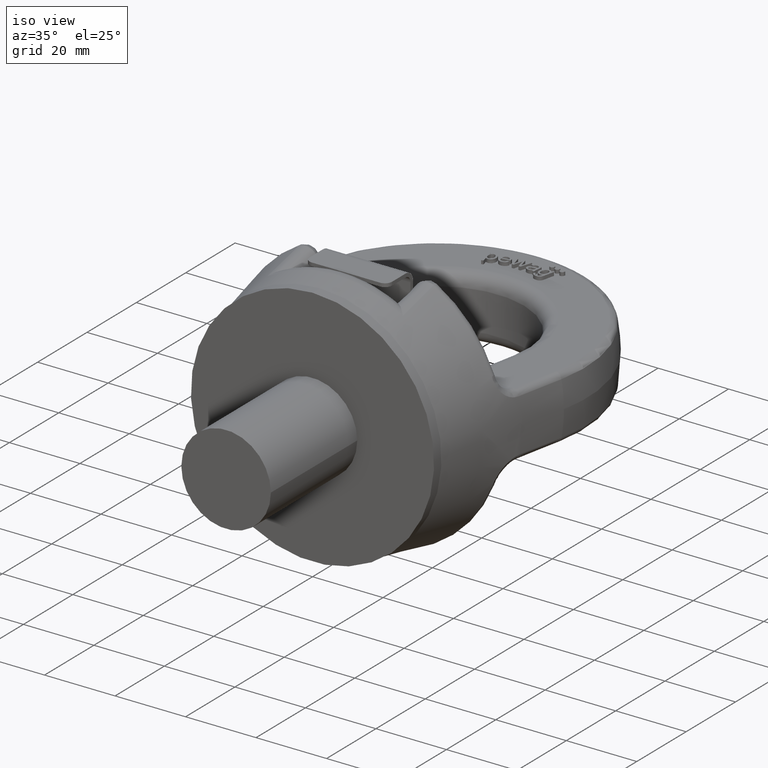
[diagram: clean part render]
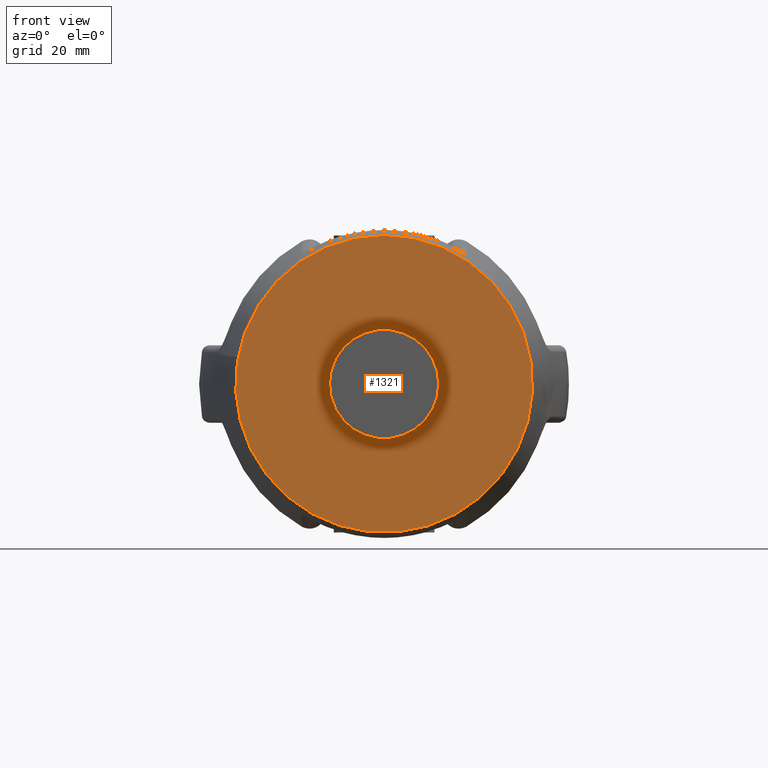
[diagram: tour spotlight — one face highlighted and labeled with its STEP entity id]
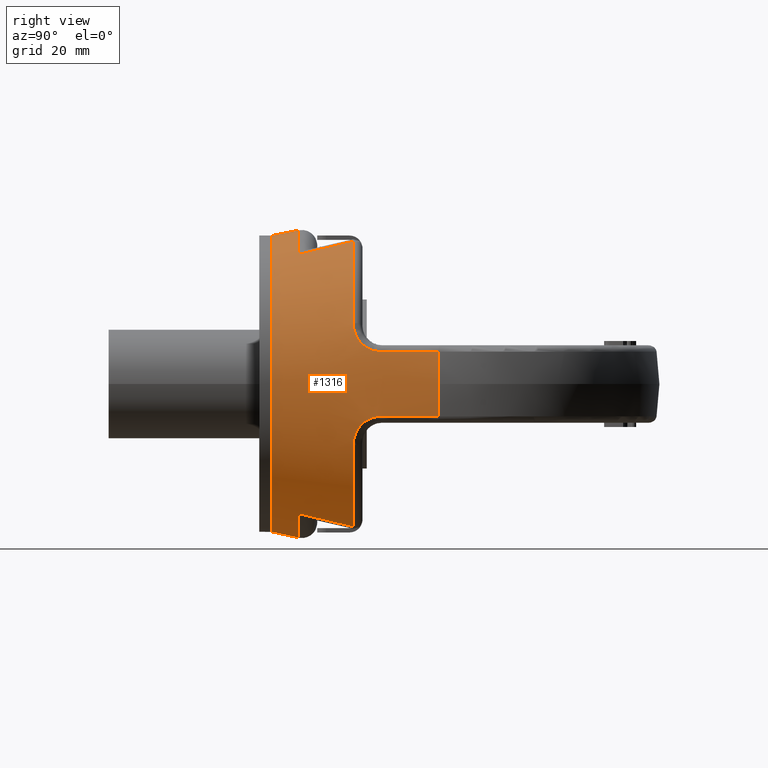
[diagram: tour spotlight — one face highlighted and labeled with its STEP entity id]
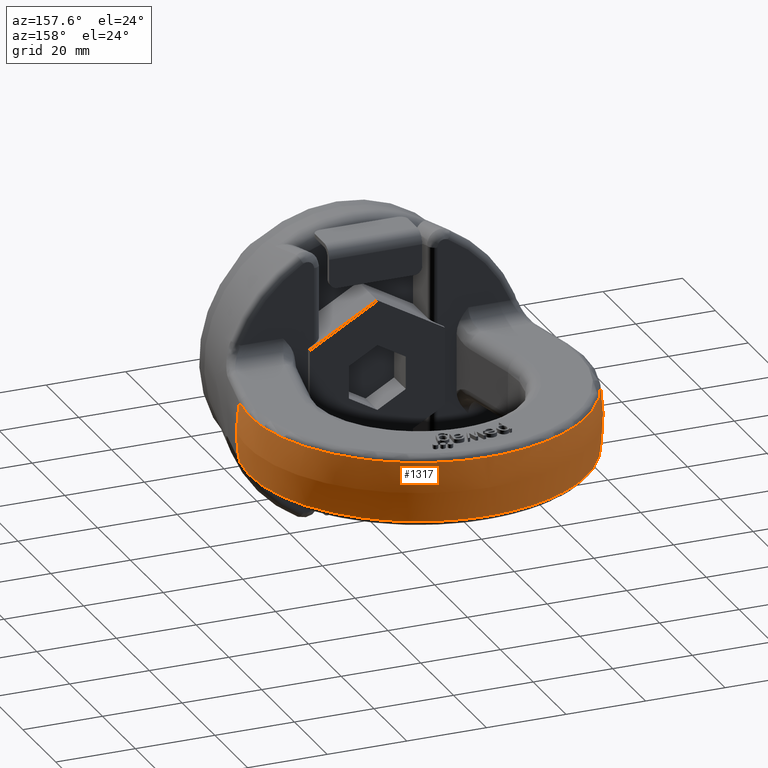
[diagram: tour spotlight — one face highlighted and labeled with its STEP entity id]
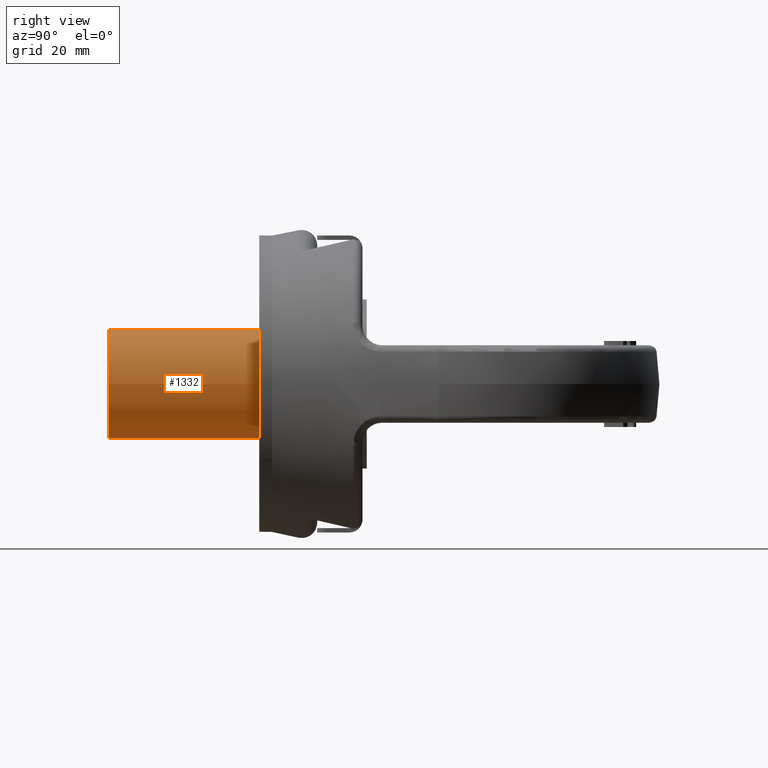
[diagram: tour spotlight — one face highlighted and labeled with its STEP entity id]
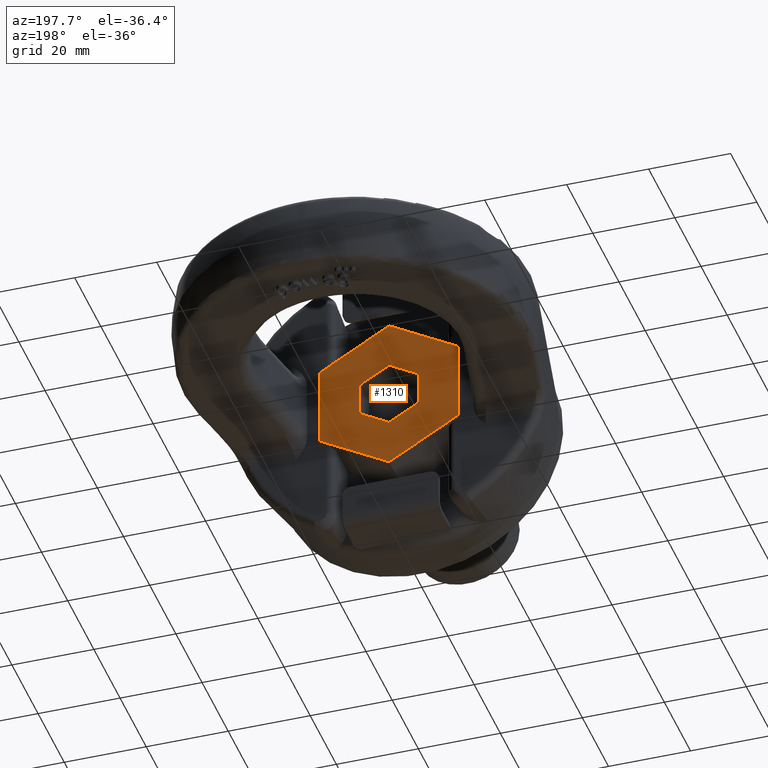
[diagram: tour spotlight — one face highlighted and labeled with its STEP entity id]
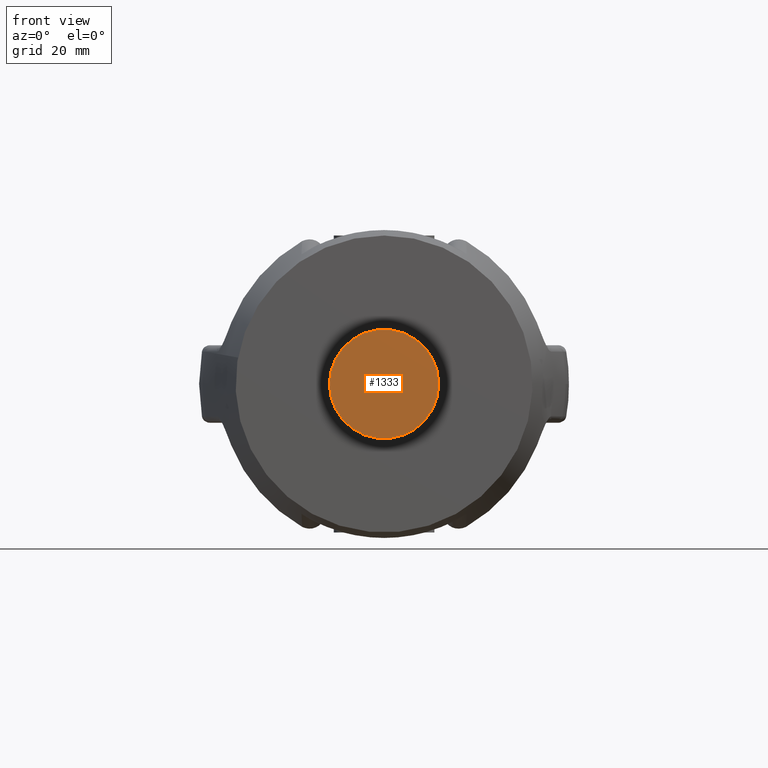
[diagram: tour spotlight — one face highlighted and labeled with its STEP entity id]
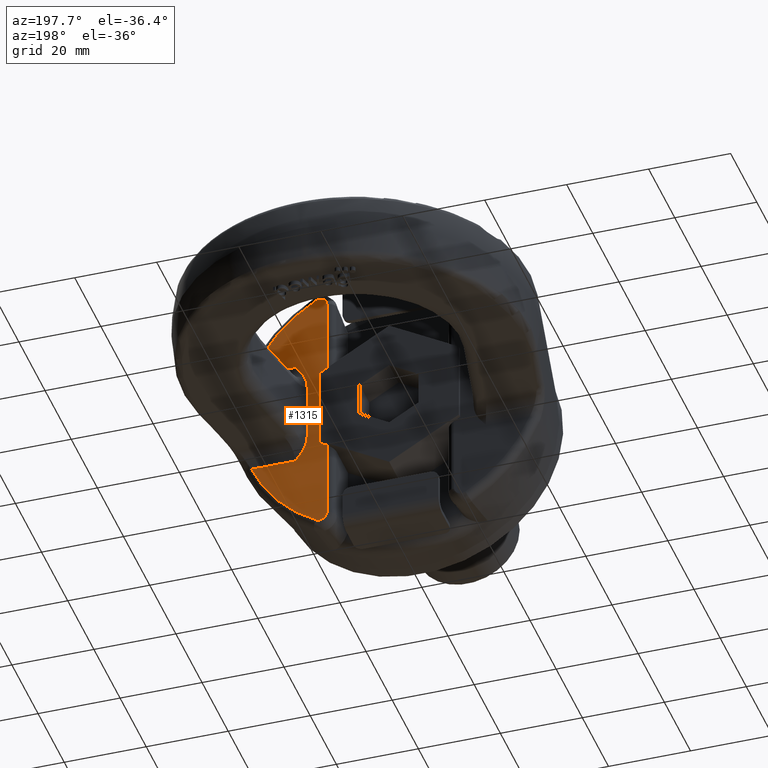
[diagram: tour spotlight — one face highlighted and labeled with its STEP entity id]
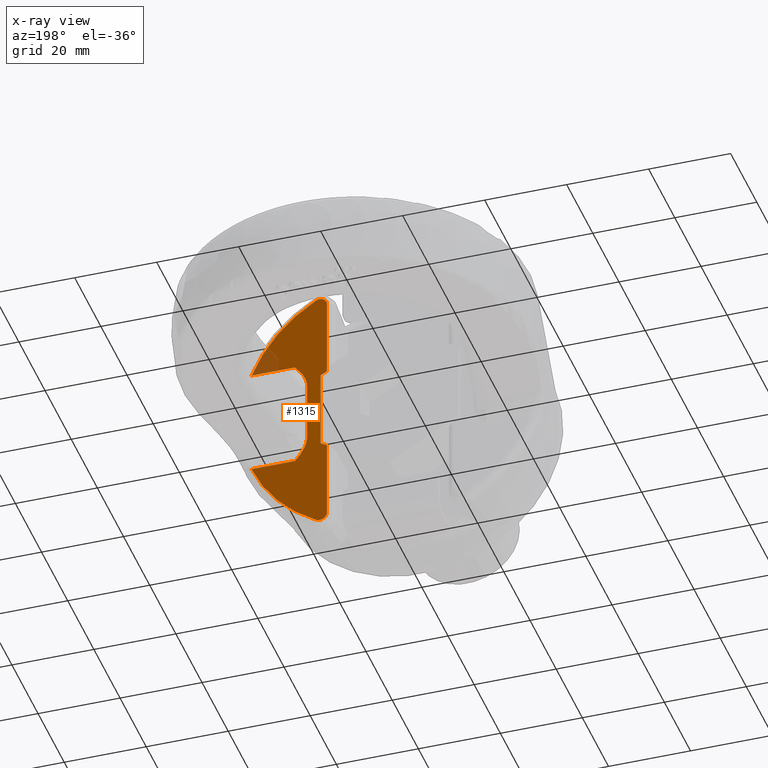
[diagram: x-ray of the same camera — body ghosted, this tour face saturated]
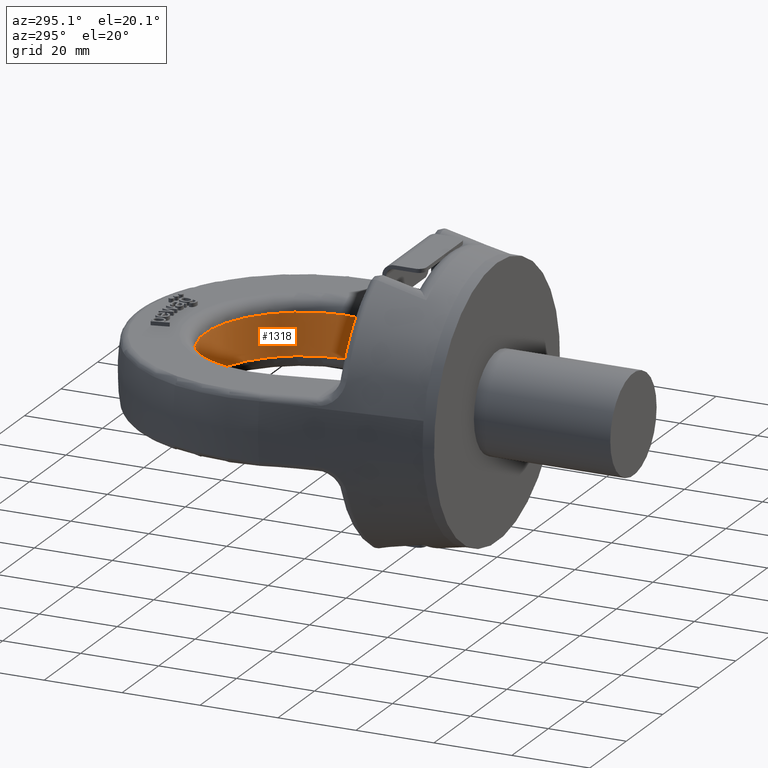
[diagram: tour spotlight — one face highlighted and labeled with its STEP entity id]
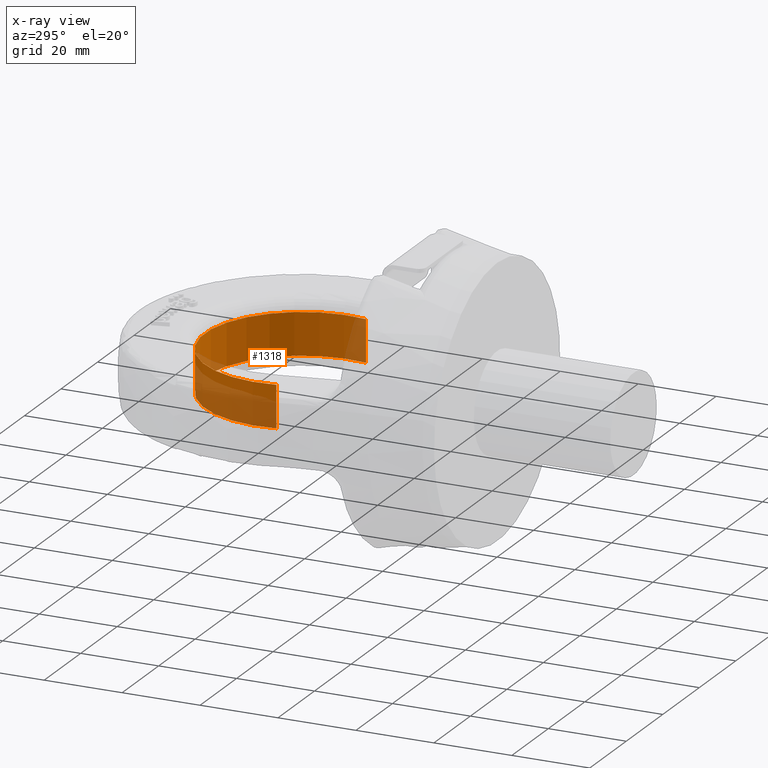
[diagram: x-ray of the same camera — body ghosted, this tour face saturated]
A machine part: a face-by-face anatomy tour. The part has 239 B-rep faces; the first image is the clean iso view, then the 8 largest visible faces are spotlighted one at a time (largest first), each with its STEP entity span.

Face 1 — front view, entity #1321. In plain terms, the highlighted planar face has unit normal (0, 1, 0).
Definition (entity closure, byte-faithful):
#1321=ADVANCED_FACE('',(#1769,#1770),#1557,.F.);
#1557=PLANE('',#5158);
#1689=CIRCLE('',#5156,34.5000000000001);
#1690=CIRCLE('',#5157,12.7);
#1769=FACE_BOUND('',#1834,.T.);
#1770=FACE_BOUND('',#1835,.T.);
#1834=EDGE_LOOP('',(#2851));
#1835=EDGE_LOOP('',(#2852));
#2851=ORIENTED_EDGE('',*,*,#4407,.F.);
#2852=ORIENTED_EDGE('',*,*,#4408,.T.);
#4011=VERTEX_POINT('',#6899);
#4012=VERTEX_POINT('',#6901);
#4407=EDGE_CURVE('',#4011,#4011,#1689,.T.);
#4408=EDGE_CURVE('',#4012,#4012,#1690,.T.);
#5156=AXIS2_PLACEMENT_3D('',#6898,#5531,#5532);
#5157=AXIS2_PLACEMENT_3D('',#6900,#5533,#5534);
#5158=AXIS2_PLACEMENT_3D('',#6902,#5535,#5536);
#5531=DIRECTION('',(0.,1.,0.));
#5532=DIRECTION('',(0.,0.,1.));
#5533=DIRECTION('',(0.,1.,0.));
#5534=DIRECTION('',(1.,0.,6.12323399573677E-17));
#5535=DIRECTION('',(0.,1.,0.));
#5536=DIRECTION('',(0.,0.,1.));
#6898=CARTESIAN_POINT('',(-1.27403500852703E-13,0.,1.35029952529594E-14));
#6899=CARTESIAN_POINT('',(-1.27403500852703E-13,0.,34.5000000000001));
#6900=CARTESIAN_POINT('',(0.,0.,0.));
#6901=CARTESIAN_POINT('',(12.7,0.,7.77650717458569E-16));
#6902=CARTESIAN_POINT('',(0.,0.,0.));

Face 2 — right view, entity #1316. In plain terms, the highlighted conical surface has half-angle 11.241 deg.
Definition (entity closure, byte-faithful):
#1090=CONICAL_SURFACE('',#5143,33.9037648954629,11.2407771573268);
#1316=ADVANCED_FACE('',(#1767,#1768),#1090,.T.);
#1676=CIRCLE('',#5134,42.1751168609517);
#1677=CIRCLE('',#5135,38.2461693295443);
#1678=CIRCLE('',#5136,35.7318700614479);
#1679=CIRCLE('',#5137,38.2461693295443);
#1680=CIRCLE('',#5138,42.1751168609517);
#1681=CIRCLE('',#5139,38.2461693295443);
#1682=CIRCLE('',#5140,35.7318700614479);
#1683=CIRCLE('',#5141,38.2461693295443);
#1684=CIRCLE('',#5142,34.5000000000001);
#1767=FACE_BOUND('',#1828,.T.);
#1768=FACE_BOUND('',#1829,.T.);
#1828=EDGE_LOOP('',(#2810,#2811,#2812,#2813,#2814,#2815,#2816,#2817,#2818,
#2819,#2820,#2821,#2822,#2823,#2824,#2825,#2826,#2827,#2828,#2829));
#1829=EDGE_LOOP('',(#2830));
#2810=ORIENTED_EDGE('',*,*,#4372,.T.);
#2811=ORIENTED_EDGE('',*,*,#4373,.T.);
#2812=ORIENTED_EDGE('',*,*,#4374,.T.);
#2813=ORIENTED_EDGE('',*,*,#4375,.T.);
#2814=ORIENTED_EDGE('',*,*,#4376,.T.);
#2815=ORIENTED_EDGE('',*,*,#4377,.T.);
#2816=ORIENTED_EDGE('',*,*,#4378,.T.);
#2817=ORIENTED_EDGE('',*,*,#4379,.T.);
#2818=ORIENTED_EDGE('',*,*,#4380,.T.);
#2819=ORIENTED_EDGE('',*,*,#4381,.T.);
#2820=ORIENTED_EDGE('',*,*,#4382,.T.);
#2821=ORIENTED_EDGE('',*,*,#4383,.T.);
#2822=ORIENTED_EDGE('',*,*,#4384,.T.);
#2823=ORIENTED_EDGE('',*,*,#4385,.T.);
#2824=ORIENTED_EDGE('',*,*,#4386,.T.);
#2825=ORIENTED_EDGE('',*,*,#4387,.T.);
#2826=ORIENTED_EDGE('',*,*,#4388,.T.);
#2827=ORIENTED_EDGE('',*,*,#4389,.T.);
#2828=ORIENTED_EDGE('',*,*,#4390,.T.);
#2829=ORIENTED_EDGE('',*,*,#4391,.T.);
#2830=ORIENTED_EDGE('',*,*,#4392,.F.);
#3982=VERTEX_POINT('',#6762);
#3983=VERTEX_POINT('',#6763);
#3984=VERTEX_POINT('',#6771);
#3985=VERTEX_POINT('',#6778);
#3986=VERTEX_POINT('',#6780);
#3987=VERTEX_POINT('',#6788);
#3988=VERTEX_POINT('',#6790);
#3989=VERTEX_POINT('',#6798);
#3990=VERTEX_POINT('',#6800);
#3991=VERTEX_POINT('',#6807);
#3992=VERTEX_POINT('',#6815);
#3993=VERTEX_POINT('',#6817);
#3994=VERTEX_POINT('',#6825);
#3995=VERTEX_POINT('',#6832);
#3996=VERTEX_POINT('',#6834);
#3997=VERTEX_POINT('',#6842);
#3998=VERTEX_POINT('',#6844);
#3999=VERTEX_POINT('',#6852);
#4000=VERTEX_POINT('',#6854);
#4001=VERTEX_POINT('',#6861);
#4002=VERTEX_POINT('',#6870);
#4372=EDGE_CURVE('',#3982,#3983,#1676,.T.);
#4373=EDGE_CURVE('',#3983,#3984,#4887,.T.);
#4374=EDGE_CURVE('',#3984,#3985,#4888,.T.);
#4375=EDGE_CURVE('',#3985,#3986,#1677,.T.);
#4376=EDGE_CURVE('',#3986,#3987,#4889,.T.);
#4377=EDGE_CURVE('',#3987,#3988,#1678,.T.);
#4378=EDGE_CURVE('',#3988,#3989,#4890,.T.);
#4379=EDGE_CURVE('',#3989,#3990,#1679,.T.);
#4380=EDGE_CURVE('',#3990,#3991,#4891,.T.);
#4381=EDGE_CURVE('',#3991,#3992,#4892,.T.);
#4382=EDGE_CURVE('',#3992,#3993,#1680,.T.);
#4383=EDGE_CURVE('',#3993,#3994,#4893,.T.);
#4384=EDGE_CURVE('',#3994,#3995,#4894,.T.);
#4385=EDGE_CURVE('',#3995,#3996,#1681,.T.);
#4386=EDGE_CURVE('',#3996,#3997,#4895,.T.);
#4387=EDGE_CURVE('',#3997,#3998,#1682,.T.);
#4388=EDGE_CURVE('',#3998,#3999,#4896,.T.);
#4389=EDGE_CURVE('',#3999,#4000,#1683,.T.);
#4390=EDGE_CURVE('',#4000,#4001,#4897,.T.);
#4391=EDGE_CURVE('',#4001,#3982,#4898,.T.);
#4392=EDGE_CURVE('',#4002,#4002,#1684,.T.);
#4887=B_SPLINE_CURVE_WITH_KNOTS('',3,(#6764,#6765,#6766,#6767,#6768,#6769,
#6770),.UNSPECIFIED.,.F.,.F.,(4,3,4),(0.,0.26196598705695,1.),
 .UNSPECIFIED.);
#4888=B_SPLINE_CURVE_WITH_KNOTS('',3,(#6772,#6773,#6774,#6775,#6776,#6777),
 .UNSPECIFIED.,.F.,.F.,(4,2,4),(0.,0.5,1.),.UNSPECIFIED.);
#4889=B_SPLINE_CURVE_WITH_KNOTS('',3,(#6781,#6782,#6783,#6784,#6785,#6786,
#6787),.UNSPECIFIED.,.F.,.F.,(4,3,4),(0.,0.260650964983414,1.),
 .UNSPECIFIED.);
#4890=B_SPLINE_CURVE_WITH_KNOTS('',3,(#6791,#6792,#6793,#6794,#6795,#6796,
#6797),.UNSPECIFIED.,.F.,.F.,(4,3,4),(0.,0.739349035016581,1.),
 .UNSPECIFIED.);
#4891=B_SPLINE_CURVE_WITH_KNOTS('',3,(#6801,#6802,#6803,#6804,#6805,#6806),
 .UNSPECIFIED.,.F.,.F.,(4,2,4),(0.,0.5,1.),.UNSPECIFIED.);
#4892=B_SPLINE_CURVE_WITH_KNOTS('',3,(#6808,#6809,#6810,#6811,#6812,#6813,
#6814),.UNSPECIFIED.,.F.,.F.,(4,3,4),(0.,0.261965987367572,1.),
 .UNSPECIFIED.);
#4893=B_SPLINE_CURVE_WITH_KNOTS('',3,(#6818,#6819,#6820,#6821,#6822,#6823,
#6824),.UNSPECIFIED.,.F.,.F.,(4,3,4),(0.,0.26196598705695,1.),
 .UNSPECIFIED.);
#4894=B_SPLINE_CURVE_WITH_KNOTS('',3,(#6826,#6827,#6828,#6829,#6830,#6831),
 .UNSPECIFIED.,.F.,.F.,(4,2,4),(0.,0.5,1.),.UNSPECIFIED.);
#4895=B_SPLINE_CURVE_WITH_KNOTS('',3,(#6835,#6836,#6837,#6838,#6839,#6840,
#6841),.UNSPECIFIED.,.F.,.F.,(4,3,4),(0.,0.260650964983414,1.),
 .UNSPECIFIED.);
#4896=B_SPLINE_CURVE_WITH_KNOTS('',3,(#6845,#6846,#6847,#6848,#6849,#6850,
#6851),.UNSPECIFIED.,.F.,.F.,(4,3,4),(0.,0.739349035016581,1.),
 .UNSPECIFIED.);
#4897=B_SPLINE_CURVE_WITH_KNOTS('',3,(#6855,#6856,#6857,#6858,#6859,#6860),
 .UNSPECIFIED.,.F.,.F.,(4,2,4),(0.,0.5,1.),.UNSPECIFIED.);
#4898=B_SPLINE_CURVE_WITH_KNOTS('',3,(#6862,#6863,#6864,#6865,#6866,#6867,
#6868),.UNSPECIFIED.,.F.,.F.,(4,3,4),(0.,0.261965987367572,1.),
 .UNSPECIFIED.);
#5134=AXIS2_PLACEMENT_3D('',#6761,#5481,#5482);
#5135=AXIS2_PLACEMENT_3D('',#6779,#5483,#5484);
#5136=AXIS2_PLACEMENT_3D('',#6789,#5485,#5486);
#5137=AXIS2_PLACEMENT_3D('',#6799,#5487,#5488);
#5138=AXIS2_PLACEMENT_3D('',#6816,#5489,#5490);
#5139=AXIS2_PLACEMENT_3D('',#6833,#5491,#5492);
#5140=AXIS2_PLACEMENT_3D('',#6843,#5493,#5494);
#5141=AXIS2_PLACEMENT_3D('',#6853,#5495,#5496);
#5142=AXIS2_PLACEMENT_3D('',#6869,#5497,#5498);
#5143=AXIS2_PLACEMENT_3D('',#6871,#5499,#5500);
#5481=DIRECTION('',(-1.36993011669573E-15,-1.,0.));
#5482=DIRECTION('',(1.,-1.31620622212557E-15,0.));
#5483=DIRECTION('',(5.23959618485329E-16,-1.,1.2275906117985E-30));
#5484=DIRECTION('',(-1.,-5.44281481691849E-16,-2.34291072916505E-15));
#5485=DIRECTION('',(-1.26622151531154E-16,-1.,-2.96664397372303E-31));
#5486=DIRECTION('',(-1.,1.45645061928772E-16,-2.34291072916505E-15));
#5487=DIRECTION('',(-5.23959618485329E-16,-1.,-1.2275906117985E-30));
#5488=DIRECTION('',(-1.,5.44281481691849E-16,-2.34291072916505E-15));
#5489=DIRECTION('',(-1.36993011669573E-15,-1.,0.));
#5490=DIRECTION('',(1.,-1.31620622212557E-15,0.));
#5491=DIRECTION('',(-5.23959618485329E-16,-1.,0.));
#5492=DIRECTION('',(1.,-5.44281481691849E-16,0.));
#5493=DIRECTION('',(1.26622151531154E-16,-1.,0.));
#5494=DIRECTION('',(1.,1.45645061928772E-16,0.));
#5495=DIRECTION('',(5.23959618485329E-16,-1.,0.));
#5496=DIRECTION('',(1.,5.44281481691849E-16,0.));
#5497=DIRECTION('',(0.,-1.,0.));
#5498=DIRECTION('',(0.,0.,1.));
#5499=DIRECTION('',(1.36993011669573E-15,1.,0.));
#5500=DIRECTION('',(-1.,7.75466031642052E-16,0.));
#6761=CARTESIAN_POINT('',(-7.03898794955252E-14,41.6179049298475,0.));
#6762=CARTESIAN_POINT('',(-41.5002629334913,41.6179049298476,7.51456310679614));
#6763=CARTESIAN_POINT('',(-41.5002629334912,41.6179049298475,-7.51456310679622));
#6764=CARTESIAN_POINT('',(-41.5002629334912,41.6179049298475,-7.51456310679622));
#6765=CARTESIAN_POINT('',(-41.262371793964,40.4417227580087,-7.51638278088225));
#6766=CARTESIAN_POINT('',(-41.024407429153,39.2655554421835,-7.51823400134156));
#6767=CARTESIAN_POINT('',(-40.7863656152853,38.089403857365,-7.5201184668886));
#6768=CARTESIAN_POINT('',(-40.1157329366906,34.7758444664987,-7.525427551696));
#6769=CARTESIAN_POINT('',(-39.4444872519472,31.4624094684591,-7.53099986567119));
#6770=CARTESIAN_POINT('',(-38.7725191268712,28.1491216017145,-7.53687895949735));
#6771=CARTESIAN_POINT('',(-38.7725191268712,28.1491216017145,-7.53687895949735));
#6772=CARTESIAN_POINT('',(-38.7725191268712,28.1491216017145,-7.53687895949735));
#6773=CARTESIAN_POINT('',(-38.4155167898867,26.3888424048459,-7.54000239669171));
#6774=CARTESIAN_POINT('',(-37.9375858818164,24.73080778331,-8.33524847165429));
#6775=CARTESIAN_POINT('',(-36.826425115145,22.451579933414,-10.8437830853427));
#6776=CARTESIAN_POINT('',(-36.1939914476563,21.8491216017145,-12.4889596849298));
#6777=CARTESIAN_POINT('',(-35.5310116414863,21.8491216017145,-14.1533275280666));
#6778=CARTESIAN_POINT('',(-35.5310116414863,21.8491216017145,-14.1533275280666));
#6779=CARTESIAN_POINT('',(9.7471731147167E-14,21.8491216017146,2.28367564694989E-28));
#6780=CARTESIAN_POINT('',(-19.0596099317146,21.8491216017145,-33.1587203859717));
#6781=CARTESIAN_POINT('',(-19.0596099317146,21.8491216017145,-33.1587203859717));
#6782=CARTESIAN_POINT('',(-19.0706922042846,20.7490114468574,-32.9001633340901));
#6783=CARTESIAN_POINT('',(-19.0819815683652,19.6491225862349,-32.6406714209463));
#6784=CARTESIAN_POINT('',(-19.0934898627677,18.5494756563027,-32.3801697754362));
#6785=CARTESIAN_POINT('',(-19.1261335905987,15.4302840684424,-31.6412466545859));
#6786=CARTESIAN_POINT('',(-19.1605342843369,12.3130067293474,-30.8942442142404));
#6787=CARTESIAN_POINT('',(-19.1970030429458,9.1982432034291,-30.1370471721654));
#6788=CARTESIAN_POINT('',(-19.1970030429458,9.1982432034291,-30.1370471721654));
#6789=CARTESIAN_POINT('',(1.14802550467634E-13,9.1982432034291,2.68972127226131E-28));
#6790=CARTESIAN_POINT('',(19.1970030429459,9.1982432034291,-30.1370471721655));
#6791=CARTESIAN_POINT('',(19.1970030429459,9.1982432034291,-30.1370471721655));
#6792=CARTESIAN_POINT('',(19.160534284337,12.3130067293474,-30.8942442142404));
#6793=CARTESIAN_POINT('',(19.1261335905989,15.4302840684424,-31.6412466545859));
#6794=CARTESIAN_POINT('',(19.0934898627678,18.5494756563026,-32.3801697754362));
#6795=CARTESIAN_POINT('',(19.0819815683653,19.6491225862349,-32.6406714209464));
#6796=CARTESIAN_POINT('',(19.0706922042847,20.7490114468573,-32.9001633340901));
#6797=CARTESIAN_POINT('',(19.0596099317147,21.8491216017145,-33.1587203859717));
#6798=CARTESIAN_POINT('',(19.0596099317147,21.8491216017145,-33.1587203859717));
#6799=CARTESIAN_POINT('',(9.7471731147167E-14,21.8491216017146,2.28367564694989E-28));
#6800=CARTESIAN_POINT('',(35.5310116414866,21.8491216017145,-14.1533275280664));
#6801=CARTESIAN_POINT('',(35.5310116414866,21.8491216017145,-14.1533275280664));
#6802=CARTESIAN_POINT('',(36.1935776588447,21.8491216017145,-12.4899984749288));
#6803=CARTESIAN_POINT('',(36.8321705243426,22.4621816007076,-10.8303715744333));
#6804=CARTESIAN_POINT('',(37.9348125300438,24.7263056337703,-8.3419515136468));
#6805=CARTESIAN_POINT('',(38.4157924795365,26.3902017538044,-7.53999998466445));
#6806=CARTESIAN_POINT('',(38.7725191268714,28.1491216017145,-7.53687895949717));
#6807=CARTESIAN_POINT('',(38.7725191268714,28.1491216017145,-7.53687895949717));
#6808=CARTESIAN_POINT('',(38.7725191268714,28.1491216017145,-7.53687895949717));
#6809=CARTESIAN_POINT('',(39.0110349591953,29.3251768099523,-7.5347921686139));
#6810=CARTESIAN_POINT('',(39.2494595454838,30.5012505963745,-7.5327441116826));
#6811=CARTESIAN_POINT('',(39.4877981351242,31.6773418686576,-7.5307327101645));
#6812=CARTESIAN_POINT('',(40.1592669165261,34.9907313395309,-7.52506600999522));
#6813=CARTESIAN_POINT('',(40.8300547478608,38.304259365217,-7.51968965530919));
#6814=CARTESIAN_POINT('',(41.5002629334914,41.6179049298476,-7.51456310679605));
#6815=CARTESIAN_POINT('',(41.5002629334914,41.6179049298476,-7.51456310679605));
#6816=CARTESIAN_POINT('',(-7.03898794955252E-14,41.6179049298475,0.));
#6817=CARTESIAN_POINT('',(41.5002629334912,41.6179049298475,7.51456310679613));
#6818=CARTESIAN_POINT('',(41.5002629334912,41.6179049298475,7.51456310679613));
#6819=CARTESIAN_POINT('',(41.2623717939641,40.4417227580087,7.51638278088215));
#6820=CARTESIAN_POINT('',(41.024407429153,39.2655554421835,7.51823400134146));
#6821=CARTESIAN_POINT('',(40.7863656152853,38.089403857365,7.5201184668885));
#6822=CARTESIAN_POINT('',(40.1157329366907,34.7758444664987,7.52542755169591));
#6823=CARTESIAN_POINT('',(39.4444872519472,31.4624094684591,7.5309998656711));
#6824=CARTESIAN_POINT('',(38.7725191268712,28.1491216017145,7.53687895949726));
#6825=CARTESIAN_POINT('',(38.7725191268712,28.1491216017145,7.53687895949726));
#6826=CARTESIAN_POINT('',(38.7725191268712,28.1491216017145,7.53687895949726));
#6827=CARTESIAN_POINT('',(38.4155167898867,26.3888424048459,7.54000239669162));
#6828=CARTESIAN_POINT('',(37.9375858818164,24.73080778331,8.3352484716542));
#6829=CARTESIAN_POINT('',(36.8264251151451,22.451579933414,10.8437830853426));
#6830=CARTESIAN_POINT('',(36.1939914476564,21.8491216017145,12.4889596849297));
#6831=CARTESIAN_POINT('',(35.5310116414864,21.8491216017145,14.1533275280665));
#6832=CARTESIAN_POINT('',(35.5310116414864,21.8491216017145,14.1533275280665));
#6833=CARTESIAN_POINT('',(-9.7471731147167E-14,21.8491216017146,0.));
#6834=CARTESIAN_POINT('',(19.0596099317147,21.8491216017145,33.1587203859716));
#6835=CARTESIAN_POINT('',(19.0596099317147,21.8491216017145,33.1587203859716));
#6836=CARTESIAN_POINT('',(19.0706922042847,20.7490114468574,32.9001633340901));
#6837=CARTESIAN_POINT('',(19.0819815683653,19.6491225862349,32.6406714209463));
#6838=CARTESIAN_POINT('',(19.0934898627678,18.5494756563027,32.3801697754362));
#6839=CARTESIAN_POINT('',(19.1261335905988,15.4302840684424,31.6412466545859));
#6840=CARTESIAN_POINT('',(19.1605342843369,12.3130067293474,30.8942442142403));
#6841=CARTESIAN_POINT('',(19.1970030429459,9.1982432034291,30.1370471721654));
#6842=CARTESIAN_POINT('',(19.1970030429459,9.1982432034291,30.1370471721654));
#6843=CARTESIAN_POINT('',(-1.14802550467634E-13,9.1982432034291,0.));
#6844=CARTESIAN_POINT('',(-19.1970030429458,9.1982432034291,30.1370471721655));
#6845=CARTESIAN_POINT('',(-19.1970030429458,9.1982432034291,30.1370471721655));
#6846=CARTESIAN_POINT('',(-19.1605342843369,12.3130067293474,30.8942442142405));
#6847=CARTESIAN_POINT('',(-19.1261335905988,15.4302840684424,31.641246654586));
#6848=CARTESIAN_POINT('',(-19.0934898627678,18.5494756563026,32.3801697754363));
#6849=CARTESIAN_POINT('',(-19.0819815683653,19.6491225862349,32.6406714209464));
#6850=CARTESIAN_POINT('',(-19.0706922042847,20.7490114468573,32.9001633340902));
#6851=CARTESIAN_POINT('',(-19.0596099317147,21.8491216017145,33.1587203859717));
#6852=CARTESIAN_POINT('',(-19.0596099317147,21.8491216017145,33.1587203859717));
#6853=CARTESIAN_POINT('',(-9.7471731147167E-14,21.8491216017146,0.));
#6854=CARTESIAN_POINT('',(-35.5310116414866,21.8491216017145,14.1533275280665));
#6855=CARTESIAN_POINT('',(-35.5310116414866,21.8491216017145,14.1533275280665));
#6856=CARTESIAN_POINT('',(-36.1935776588447,21.8491216017145,12.4899984749289));
#6857=CARTESIAN_POINT('',(-36.8321705243426,22.4621816007076,10.8303715744334));
#6858=CARTESIAN_POINT('',(-37.9348125300438,24.7263056337703,8.34195151364688));
#6859=CARTESIAN_POINT('',(-38.4157924795365,26.3902017538044,7.53999998466453));
#6860=CARTESIAN_POINT('',(-38.7725191268714,28.1491216017145,7.53687895949726));
#6861=CARTESIAN_POINT('',(-38.7725191268714,28.1491216017145,7.53687895949726));
#6862=CARTESIAN_POINT('',(-38.7725191268714,28.1491216017145,7.53687895949726));
#6863=CARTESIAN_POINT('',(-39.0110349591953,29.3251768099523,7.53479216861399));
#6864=CARTESIAN_POINT('',(-39.2494595454838,30.5012505963745,7.53274411168269));
#6865=CARTESIAN_POINT('',(-39.4877981351242,31.6773418686576,7.5307327101646));
#6866=CARTESIAN_POINT('',(-40.1592669165261,34.9907313395309,7.52506600999531));
#6867=CARTESIAN_POINT('',(-40.8300547478608,38.304259365217,7.51968965530929));
#6868=CARTESIAN_POINT('',(-41.5002629334913,41.6179049298476,7.51456310679614));
#6869=CARTESIAN_POINT('',(-1.27403500852703E-13,3.,1.35029952529594E-14));
#6870=CARTESIAN_POINT('',(-1.27403500852703E-13,3.,34.5000000000001));
#6871=CARTESIAN_POINT('',(-1.27403500852703E-13,4.16333634234434E-14,0.));

Face 3 — auxiliary view, entity #1317. In plain terms, the highlighted spherical surface has radius 43 mm.
Definition (entity closure, byte-faithful):
#1089=SPHERICAL_SURFACE('',#5146,43.);
#1096=FACE_OUTER_BOUND('',#1830,.T.);
#1317=ADVANCED_FACE('',(#1096),#1089,.T.);
#1676=CIRCLE('',#5134,42.1751168609517);
#1680=CIRCLE('',#5138,42.1751168609517);
#1685=CIRCLE('',#5144,42.3382963912576);
#1686=CIRCLE('',#5145,42.3382963912576);
#1830=EDGE_LOOP('',(#2831,#2832,#2833,#2834));
#2831=ORIENTED_EDGE('',*,*,#4372,.F.);
#2832=ORIENTED_EDGE('',*,*,#4393,.T.);
#2833=ORIENTED_EDGE('',*,*,#4382,.F.);
#2834=ORIENTED_EDGE('',*,*,#4394,.T.);
#3982=VERTEX_POINT('',#6762);
#3983=VERTEX_POINT('',#6763);
#3992=VERTEX_POINT('',#6815);
#3993=VERTEX_POINT('',#6817);
#4372=EDGE_CURVE('',#3982,#3983,#1676,.T.);
#4382=EDGE_CURVE('',#3992,#3993,#1680,.T.);
#4393=EDGE_CURVE('',#3982,#3993,#1685,.T.);
#4394=EDGE_CURVE('',#3992,#3983,#1686,.T.);
#5134=AXIS2_PLACEMENT_3D('',#6761,#5481,#5482);
#5138=AXIS2_PLACEMENT_3D('',#6816,#5489,#5490);
#5144=AXIS2_PLACEMENT_3D('',#6872,#5501,#5502);
#5145=AXIS2_PLACEMENT_3D('',#6873,#5503,#5504);
#5146=AXIS2_PLACEMENT_3D('',#6874,#5505,#5506);
#5481=DIRECTION('',(-1.36993011669573E-15,-1.,0.));
#5482=DIRECTION('',(1.,-1.31620622212557E-15,0.));
#5489=DIRECTION('',(-1.36993011669573E-15,-1.,0.));
#5490=DIRECTION('',(1.,-1.31620622212557E-15,0.));
#5501=DIRECTION('',(0.,-1.31751150074188E-16,-1.));
#5502=DIRECTION('',(0.,1.,-1.22918749017143E-16));
#5503=DIRECTION('',(-2.34291072916505E-15,-1.31751150074188E-16,1.));
#5504=DIRECTION('',(-2.91130080676167E-31,1.,1.22918749017143E-16));
#5505=DIRECTION('',(-1.30869777673836E-15,-1.,0.));
#5506=DIRECTION('',(1.,-1.29095700537809E-15,0.));
#6761=CARTESIAN_POINT('',(-7.03898794955252E-14,41.6179049298475,0.));
#6762=CARTESIAN_POINT('',(-41.5002629334913,41.6179049298476,7.51456310679614));
#6763=CARTESIAN_POINT('',(-41.5002629334912,41.6179049298475,-7.51456310679622));
#6815=CARTESIAN_POINT('',(41.5002629334914,41.6179049298476,-7.51456310679605));
#6816=CARTESIAN_POINT('',(-7.03898794955252E-14,41.6179049298475,0.));
#6817=CARTESIAN_POINT('',(41.5002629334912,41.6179049298475,7.51456310679613));
#6872=CARTESIAN_POINT('',(-1.38050658413677E-30,50.,7.51456310679612));
#6873=CARTESIAN_POINT('',(1.76059505279005E-14,50.,-7.51456310679612));
#6874=CARTESIAN_POINT('',(-1.38050658413677E-30,50.,0.));

Face 4 — right view, entity #1332. In plain terms, the highlighted cylindrical surface (bore or boss wall) has radius 12.7 mm, axis along (0, 1, 0).
Definition (entity closure, byte-faithful):
#1058=CYLINDRICAL_SURFACE('',#5172,12.7);
#1332=ADVANCED_FACE('',(#1773,#1774),#1058,.T.);
#1690=CIRCLE('',#5157,12.7);
#1691=CIRCLE('',#5171,12.7);
#1773=FACE_BOUND('',#1847,.T.);
#1774=FACE_BOUND('',#1848,.T.);
#1847=EDGE_LOOP('',(#2899));
#1848=EDGE_LOOP('',(#2900));
#2899=ORIENTED_EDGE('',*,*,#4427,.T.);
#2900=ORIENTED_EDGE('',*,*,#4408,.F.);
#4012=VERTEX_POINT('',#6901);
#4019=VERTEX_POINT('',#6938);
#4408=EDGE_CURVE('',#4012,#4012,#1690,.T.);
#4427=EDGE_CURVE('',#4019,#4019,#1691,.T.);
#5157=AXIS2_PLACEMENT_3D('',#6900,#5533,#5534);
#5171=AXIS2_PLACEMENT_3D('',#6937,#5577,#5578);
#5172=AXIS2_PLACEMENT_3D('',#6939,#5579,#5580);
#5533=DIRECTION('',(0.,1.,0.));
#5534=DIRECTION('',(1.,0.,6.12323399573677E-17));
#5577=DIRECTION('',(0.,1.,0.));
#5578=DIRECTION('',(1.,0.,6.12323399573677E-17));
#5579=DIRECTION('',(0.,1.,0.));
#5580=DIRECTION('',(0.,0.,1.));
#6900=CARTESIAN_POINT('',(0.,0.,0.));
#6901=CARTESIAN_POINT('',(12.7,0.,7.77650717458569E-16));
#6937=CARTESIAN_POINT('',(0.,-35.,0.));
#6938=CARTESIAN_POINT('',(12.7,-35.,7.77650717458569E-16));
#6939=CARTESIAN_POINT('',(0.,-35.,0.));

Face 5 — auxiliary view, entity #1310. In plain terms, the highlighted planar face has unit normal (0, -1, 0).
Definition (entity closure, byte-faithful):
#1310=ADVANCED_FACE('',(#1765,#1766),#1549,.F.);
#1549=PLANE('',#5123);
#1765=FACE_BOUND('',#1821,.T.);
#1766=FACE_BOUND('',#1822,.T.);
#1821=EDGE_LOOP('',(#2755,#2756,#2757,#2758,#2759,#2760));
#1822=EDGE_LOOP('',(#2761,#2762,#2763,#2764,#2765,#2766));
#2113=LINE('',#6529,#2393);
#2114=LINE('',#6532,#2394);
#2115=LINE('',#6534,#2395);
#2116=LINE('',#6536,#2396);
#2117=LINE('',#6538,#2397);
#2118=LINE('',#6540,#2398);
#2119=LINE('',#6541,#2399);
#2120=LINE('',#6544,#2400);
#2121=LINE('',#6546,#2401);
#2122=LINE('',#6548,#2402);
#2123=LINE('',#6550,#2403);
#2124=LINE('',#6552,#2404);
#2393=VECTOR('',#5423,1.);
#2394=VECTOR('',#5424,1.);
#2395=VECTOR('',#5425,1.);
#2396=VECTOR('',#5426,1.);
#2397=VECTOR('',#5427,1.);
#2398=VECTOR('',#5428,1.);
#2399=VECTOR('',#5429,1.);
#2400=VECTOR('',#5430,1.);
#2401=VECTOR('',#5431,1.);
#2402=VECTOR('',#5432,1.);
#2403=VECTOR('',#5433,1.);
#2404=VECTOR('',#5434,1.);
#2755=ORIENTED_EDGE('',*,*,#4319,.F.);
#2756=ORIENTED_EDGE('',*,*,#4320,.F.);
#2757=ORIENTED_EDGE('',*,*,#4321,.F.);
#2758=ORIENTED_EDGE('',*,*,#4322,.F.);
#2759=ORIENTED_EDGE('',*,*,#4323,.F.);
#2760=ORIENTED_EDGE('',*,*,#4324,.F.);
#2761=ORIENTED_EDGE('',*,*,#4325,.F.);
#2762=ORIENTED_EDGE('',*,*,#4326,.F.);
#2763=ORIENTED_EDGE('',*,*,#4327,.F.);
#2764=ORIENTED_EDGE('',*,*,#4328,.F.);
#2765=ORIENTED_EDGE('',*,*,#4329,.F.);
#2766=ORIENTED_EDGE('',*,*,#4330,.F.);
#3931=VERTEX_POINT('',#6530);
#3932=VERTEX_POINT('',#6531);
#3933=VERTEX_POINT('',#6533);
#3934=VERTEX_POINT('',#6535);
#3935=VERTEX_POINT('',#6537);
#3936=VERTEX_POINT('',#6539);
#3937=VERTEX_POINT('',#6542);
#3938=VERTEX_POINT('',#6543);
#3939=VERTEX_POINT('',#6545);
#3940=VERTEX_POINT('',#6547);
#3941=VERTEX_POINT('',#6549);
#3942=VERTEX_POINT('',#6551);
#4319=EDGE_CURVE('',#3931,#3932,#2113,.T.);
#4320=EDGE_CURVE('',#3933,#3931,#2114,.T.);
#4321=EDGE_CURVE('',#3934,#3933,#2115,.T.);
#4322=EDGE_CURVE('',#3935,#3934,#2116,.T.);
#4323=EDGE_CURVE('',#3936,#3935,#2117,.T.);
#4324=EDGE_CURVE('',#3932,#3936,#2118,.T.);
#4325=EDGE_CURVE('',#3937,#3938,#2119,.T.);
#4326=EDGE_CURVE('',#3939,#3937,#2120,.T.);
#4327=EDGE_CURVE('',#3940,#3939,#2121,.T.);
#4328=EDGE_CURVE('',#3941,#3940,#2122,.T.);
#4329=EDGE_CURVE('',#3942,#3941,#2123,.T.);
#4330=EDGE_CURVE('',#3938,#3942,#2124,.T.);
#5123=AXIS2_PLACEMENT_3D('',#6553,#5435,#5436);
#5423=DIRECTION('',(0.,0.,1.));
#5424=DIRECTION('',(0.866025403784439,0.,0.499999999999999));
#5425=DIRECTION('',(0.866025403784442,0.,-0.499999999999994));
#5426=DIRECTION('',(0.,0.,-1.));
#5427=DIRECTION('',(-0.866025403784441,0.,-0.499999999999996));
#5428=DIRECTION('',(-0.866025403784441,0.,0.499999999999996));
#5429=DIRECTION('',(-0.866025403784439,0.,-0.499999999999999));
#5430=DIRECTION('',(0.,0.,-1.));
#5431=DIRECTION('',(0.86602540378444,0.,-0.499999999999997));
#5432=DIRECTION('',(0.866025403784441,0.,0.499999999999997));
#5433=DIRECTION('',(0.,0.,1.));
#5434=DIRECTION('',(-0.866025403784442,0.,0.499999999999995));
#5435=DIRECTION('',(0.,-1.,0.));
#5436=DIRECTION('',(0.,0.,-1.));
#6529=CARTESIAN_POINT('',(17.,25.,-9.81495457622366));
#6530=CARTESIAN_POINT('',(17.,25.,-9.81495457622362));
#6531=CARTESIAN_POINT('',(17.,25.,9.81495457622366));
#6532=CARTESIAN_POINT('',(4.59911247658037E-14,25.,-19.6299091524472));
#6533=CARTESIAN_POINT('',(4.59911247658037E-14,25.,-19.6299091524472));
#6534=CARTESIAN_POINT('',(-17.,25.,-9.8149545762237));
#6535=CARTESIAN_POINT('',(-17.,25.,-9.8149545762237));
#6536=CARTESIAN_POINT('',(-17.,25.,9.81495457622366));
#6537=CARTESIAN_POINT('',(-17.,25.,9.81495457622366));
#6538=CARTESIAN_POINT('',(0.,25.,19.6299091524472));
#6539=CARTESIAN_POINT('',(0.,25.,19.6299091524472));
#6540=CARTESIAN_POINT('',(17.,25.,9.81495457622366));
#6541=CARTESIAN_POINT('',(1.84416207833391E-14,25.,-8.25033534671971));
#6542=CARTESIAN_POINT('',(7.14500000000001,25.,-4.12516767335985));
#6543=CARTESIAN_POINT('',(1.93297992030392E-14,25.,-8.25033534671971));
#6544=CARTESIAN_POINT('',(7.145,25.,-4.12516767335987));
#6545=CARTESIAN_POINT('',(7.145,25.,4.12516767335987));
#6546=CARTESIAN_POINT('',(7.145,25.,4.12516767335987));
#6547=CARTESIAN_POINT('',(0.,25.,8.25033534671971));
#6548=CARTESIAN_POINT('',(8.88178419700125E-16,25.,8.25033534671971));
#6549=CARTESIAN_POINT('',(-7.145,25.,4.12516767335987));
#6550=CARTESIAN_POINT('',(-7.145,25.,4.12516767335987));
#6551=CARTESIAN_POINT('',(-7.14499999999999,25.,-4.12516767335988));
#6552=CARTESIAN_POINT('',(-7.14499999999999,25.,-4.12516767335988));
#6553=CARTESIAN_POINT('',(0.,25.,0.));

Face 6 — front view, entity #1333. In plain terms, the highlighted planar face has unit normal (0, 1, 0).
Definition (entity closure, byte-faithful):
#1109=FACE_OUTER_BOUND('',#1849,.T.);
#1333=ADVANCED_FACE('',(#1109),#1567,.F.);
#1567=PLANE('',#5173);
#1691=CIRCLE('',#5171,12.7);
#1849=EDGE_LOOP('',(#2901));
#2901=ORIENTED_EDGE('',*,*,#4427,.F.);
#4019=VERTEX_POINT('',#6938);
#4427=EDGE_CURVE('',#4019,#4019,#1691,.T.);
#5171=AXIS2_PLACEMENT_3D('',#6937,#5577,#5578);
#5173=AXIS2_PLACEMENT_3D('',#6940,#5581,#5582);
#5577=DIRECTION('',(0.,1.,0.));
#5578=DIRECTION('',(1.,0.,6.12323399573677E-17));
#5581=DIRECTION('',(0.,1.,0.));
#5582=DIRECTION('',(0.,0.,1.));
#6937=CARTESIAN_POINT('',(0.,-35.,0.));
#6938=CARTESIAN_POINT('',(12.7,-35.,7.77650717458569E-16));
#6940=CARTESIAN_POINT('',(0.,-35.,0.));

Face 7 — auxiliary view, entity #1315. An x-ray twin of the same camera follows (body ghosted, this face saturated) — the face is partly hidden behind the body. In plain terms, the highlighted planar face has unit normal (0, 1, 0).
Definition (entity closure, byte-faithful):
#1095=FACE_OUTER_BOUND('',#1827,.T.);
#1315=ADVANCED_FACE('',(#1095),#1554,.T.);
#1554=PLANE('',#5133);
#1674=CIRCLE('',#5131,36.4806993214114);
#1675=CIRCLE('',#5132,36.4806993214114);
#1827=EDGE_LOOP('',(#2796,#2797,#2798,#2799,#2800,#2801,#2802,#2803,#2804,
#2805,#2806,#2807,#2808,#2809));
#2141=LINE('',#6680,#2421);
#2142=LINE('',#6683,#2422);
#2143=LINE('',#6710,#2423);
#2144=LINE('',#6719,#2424);
#2145=LINE('',#6728,#2425);
#2146=LINE('',#6755,#2426);
#2147=LINE('',#6757,#2427);
#2148=LINE('',#6759,#2428);
#2421=VECTOR('',#5467,1.);
#2422=VECTOR('',#5468,1.);
#2423=VECTOR('',#5471,1.);
#2424=VECTOR('',#5472,1.);
#2425=VECTOR('',#5473,1.);
#2426=VECTOR('',#5476,1.);
#2427=VECTOR('',#5477,1.);
#2428=VECTOR('',#5478,1.);
#2796=ORIENTED_EDGE('',*,*,#4358,.T.);
#2797=ORIENTED_EDGE('',*,*,#4359,.T.);
#2798=ORIENTED_EDGE('',*,*,#4360,.T.);
#2799=ORIENTED_EDGE('',*,*,#4361,.T.);
#2800=ORIENTED_EDGE('',*,*,#4362,.T.);
#2801=ORIENTED_EDGE('',*,*,#4363,.T.);
#2802=ORIENTED_EDGE('',*,*,#4364,.F.);
#2803=ORIENTED_EDGE('',*,*,#4365,.T.);
#2804=ORIENTED_EDGE('',*,*,#4366,.T.);
#2805=ORIENTED_EDGE('',*,*,#4367,.T.);
#2806=ORIENTED_EDGE('',*,*,#4368,.T.);
#2807=ORIENTED_EDGE('',*,*,#4369,.T.);
#2808=ORIENTED_EDGE('',*,*,#4370,.T.);
#2809=ORIENTED_EDGE('',*,*,#4371,.T.);
#3968=VERTEX_POINT('',#6681);
#3969=VERTEX_POINT('',#6682);
#3970=VERTEX_POINT('',#6684);
#3971=VERTEX_POINT('',#6707);
#3972=VERTEX_POINT('',#6709);
#3973=VERTEX_POINT('',#6711);
#3974=VERTEX_POINT('',#6718);
#3975=VERTEX_POINT('',#6720);
#3976=VERTEX_POINT('',#6727);
#3977=VERTEX_POINT('',#6729);
#3978=VERTEX_POINT('',#6731);
#3979=VERTEX_POINT('',#6754);
#3980=VERTEX_POINT('',#6756);
#3981=VERTEX_POINT('',#6758);
#4358=EDGE_CURVE('',#3968,#3969,#2141,.T.);
#4359=EDGE_CURVE('',#3969,#3970,#2142,.T.);
#4360=EDGE_CURVE('',#3970,#3971,#4883,.T.);
#4361=EDGE_CURVE('',#3971,#3972,#1674,.T.);
#4362=EDGE_CURVE('',#3972,#3973,#2143,.T.);
#4363=EDGE_CURVE('',#3973,#3974,#4884,.T.);
#4364=EDGE_CURVE('',#3975,#3974,#2144,.T.);
#4365=EDGE_CURVE('',#3975,#3976,#4885,.T.);
#4366=EDGE_CURVE('',#3976,#3977,#2145,.T.);
#4367=EDGE_CURVE('',#3977,#3978,#1675,.T.);
#4368=EDGE_CURVE('',#3978,#3979,#4886,.T.);
#4369=EDGE_CURVE('',#3979,#3980,#2146,.T.);
#4370=EDGE_CURVE('',#3980,#3981,#2147,.T.);
#4371=EDGE_CURVE('',#3981,#3968,#2148,.T.);
#4883=B_SPLINE_CURVE_WITH_KNOTS('',3,(#6685,#6686,#6687,#6688,#6689,#6690,
#6691,#6692,#6693,#6694,#6695,#6696,#6697,#6698,#6699,#6700,#6701,#6702,
#6703,#6704,#6705,#6706),.UNSPECIFIED.,.F.,.F.,(4,3,3,3,3,3,3,4),(0.,0.167883296718802,
0.335891115342668,0.501843620007421,0.66365446252716,0.82174166024937,0.978143883835086,
1.),.UNSPECIFIED.);
#4884=B_SPLINE_CURVE_WITH_KNOTS('',3,(#6712,#6713,#6714,#6715,#6716,#6717),
 .UNSPECIFIED.,.F.,.F.,(4,2,4),(0.,0.5,1.),.UNSPECIFIED.);
#4885=B_SPLINE_CURVE_WITH_KNOTS('',3,(#6721,#6722,#6723,#6724,#6725,#6726),
 .UNSPECIFIED.,.F.,.F.,(4,2,4),(0.,0.5,1.),.UNSPECIFIED.);
#4886=B_SPLINE_CURVE_WITH_KNOTS('',3,(#6732,#6733,#6734,#6735,#6736,#6737,
#6738,#6739,#6740,#6741,#6742,#6743,#6744,#6745,#6746,#6747,#6748,#6749,
#6750,#6751,#6752,#6753),.UNSPECIFIED.,.F.,.F.,(4,3,3,3,3,3,3,4),(0.,0.157414620977897,
0.314911905957099,0.471399204350587,0.628943779244303,0.789678921304663,
0.954460240733227,1.),.UNSPECIFIED.);
#5131=AXIS2_PLACEMENT_3D('',#6708,#5469,#5470);
#5132=AXIS2_PLACEMENT_3D('',#6730,#5474,#5475);
#5133=AXIS2_PLACEMENT_3D('',#6760,#5479,#5480);
#5467=DIRECTION('',(-0.866025403784441,4.53762340165498E-16,0.499999999999996));
#5468=DIRECTION('',(0.,0.,1.));
#5469=DIRECTION('',(5.23959618485329E-16,1.,0.));
#5470=DIRECTION('',(-1.,5.70621783544152E-16,0.));
#5471=DIRECTION('',(-1.,5.23959618485329E-16,-6.90322823278748E-32));
#5472=DIRECTION('',(0.,0.,1.));
#5473=DIRECTION('',(1.,-5.23959618485329E-16,2.34291072916505E-15));
#5474=DIRECTION('',(5.23959618485329E-16,1.,1.2275906117985E-30));
#5475=DIRECTION('',(1.,-5.70621783544152E-16,2.34291072916505E-15));
#5476=DIRECTION('',(-2.34291072916505E-15,0.,1.));
#5477=DIRECTION('',(0.86602540378444,-4.53762340165498E-16,0.499999999999999));
#5478=DIRECTION('',(0.,0.,1.));
#5479=DIRECTION('',(5.23959618485329E-16,1.,0.));
#5480=DIRECTION('',(-1.,5.23886489744996E-16,0.));
#6680=CARTESIAN_POINT('',(-1.70650079950191,24.,20.6151578484119));
#6681=CARTESIAN_POINT('',(17.,24.,9.81495457622366));
#6682=CARTESIAN_POINT('',(15.5,24.,10.6809799800081));
#6683=CARTESIAN_POINT('',(15.5,24.,47.3));
#6684=CARTESIAN_POINT('',(15.5,24.,30.0169993951352));
#6685=CARTESIAN_POINT('',(15.5,24.,30.0169993951352));
#6686=CARTESIAN_POINT('',(15.4999999999999,24.,30.2277672637509));
#6687=CARTESIAN_POINT('',(15.5361144285617,24.,30.441449271959));
#6688=CARTESIAN_POINT('',(15.6056623577695,24.,30.6404120322528));
#6689=CARTESIAN_POINT('',(15.6752389488144,24.,30.8394567883484));
#6690=CARTESIAN_POINT('',(15.7802947350701,24.,31.0293331223427));
#6691=CARTESIAN_POINT('',(15.9125781949155,24.,31.1935305742167));
#6692=CARTESIAN_POINT('',(16.0432255324664,24.,31.3556971817808));
#6693=CARTESIAN_POINT('',(16.2042277611958,24.,31.4973902325242));
#6694=CARTESIAN_POINT('',(16.3821555394229,24.,31.6055957829972));
#6695=CARTESIAN_POINT('',(16.5556942830473,24.,31.7111321723647));
#6696=CARTESIAN_POINT('',(16.7502975939011,24.,31.7877730005516));
#6697=CARTESIAN_POINT('',(16.9493171881057,24.,31.8283294567839));
#6698=CARTESIAN_POINT('',(17.1438514377205,24.,31.8679718840117));
#6699=CARTESIAN_POINT('',(17.3480396609455,24.,31.8742490465602));
#6700=CARTESIAN_POINT('',(17.5446345521703,24.,31.8465805617072));
#6701=CARTESIAN_POINT('',(17.7392182004289,24.,31.8191951363234));
#6702=CARTESIAN_POINT('',(17.9316837016803,24.,31.7578553831552));
#6703=CARTESIAN_POINT('',(18.106440980269,24.,31.6680074489922));
#6704=CARTESIAN_POINT('',(18.131200392276,24.,31.6552778961067));
#6705=CARTESIAN_POINT('',(18.1556681330246,24.,31.6419644253118));
#6706=CARTESIAN_POINT('',(18.1798049658573,24.,31.6280905902113));
#6707=CARTESIAN_POINT('',(18.1798049658573,24.,31.6280905902113));
#6708=CARTESIAN_POINT('',(-1.39148938371701E-13,24.,0.));
#6709=CARTESIAN_POINT('',(33.8908752170731,24.,13.5));
#6710=CARTESIAN_POINT('',(13.7,24.,13.5));
#6711=CARTESIAN_POINT('',(23.276520825302,24.,13.5));
#6712=CARTESIAN_POINT('',(23.276520825302,24.,13.5));
#6713=CARTESIAN_POINT('',(22.4956224276136,24.,12.6265397417253));
#6714=CARTESIAN_POINT('',(21.7570577426749,24.,11.6899434982067));
#6715=CARTESIAN_POINT('',(20.6762106868907,24.,9.62488698180323));
#6716=CARTESIAN_POINT('',(20.3215922554932,24.,8.47490565799248));
#6717=CARTESIAN_POINT('',(20.3215922554932,24.,7.29099635776172));
#6718=CARTESIAN_POINT('',(20.3215922554932,24.,7.29099635776172));
#6719=CARTESIAN_POINT('',(20.3215922554932,24.,47.3));
#6720=CARTESIAN_POINT('',(20.3215922554932,24.,-7.29099635776168));
#6721=CARTESIAN_POINT('',(20.3215922554932,24.,-7.29099635776168));
#6722=CARTESIAN_POINT('',(20.3215922554932,24.,-8.47490565799243));
#6723=CARTESIAN_POINT('',(20.6762106868907,24.,-9.62488698180318));
#6724=CARTESIAN_POINT('',(21.7570577426749,24.,-11.6899434982066));
#6725=CARTESIAN_POINT('',(22.4956224276127,24.,-12.6265397417261));
#6726=CARTESIAN_POINT('',(23.276520825302,24.,-13.5));
#6727=CARTESIAN_POINT('',(23.276520825302,24.,-13.5));
#6728=CARTESIAN_POINT('',(20.3215922554932,24.,-13.5));
#6729=CARTESIAN_POINT('',(33.8908752170733,24.,-13.4999999999999));
#6730=CARTESIAN_POINT('',(1.94425212147086E-13,24.,4.55520915559597E-28));
#6731=CARTESIAN_POINT('',(18.1798049658574,24.,-31.6280905902114));
#6732=CARTESIAN_POINT('',(18.1798049658574,24.,-31.6280905902114));
#6733=CARTESIAN_POINT('',(18.008469297464,24.,-31.7265742159049));
#6734=CARTESIAN_POINT('',(17.8179331816269,24.,-31.7971798193543));
#6735=CARTESIAN_POINT('',(17.6236966791658,24.,-31.8336094351255));
#6736=CARTESIAN_POINT('',(17.4293941081275,24.,-31.8700514422487));
#6737=CARTESIAN_POINT('',(17.2260491713312,24.,-31.8732563823712));
#6738=CARTESIAN_POINT('',(17.0306986167804,24.,-31.8429303237423));
#6739=CARTESIAN_POINT('',(16.8365382078376,24.,-31.812789022334));
#6740=CARTESIAN_POINT('',(16.6449799772162,24.,-31.7487455750994));
#6741=CARTESIAN_POINT('',(16.4715071192838,24.,-31.6564746153549));
#6742=CARTESIAN_POINT('',(16.296828966381,24.,-31.5635625540282));
#6743=CARTESIAN_POINT('',(16.1357729300165,24.,-31.4395988874448));
#6744=CARTESIAN_POINT('',(16.0006857268094,24.,-31.2950424771021));
#6745=CARTESIAN_POINT('',(15.8628756695091,24.,-31.147572348774));
#6746=CARTESIAN_POINT('',(15.7483742006204,24.,-30.974780473186));
#6747=CARTESIAN_POINT('',(15.6655881040099,24.,-30.7907002926933));
#6748=CARTESIAN_POINT('',(15.5807460343142,24.,-30.6020485245535));
#6749=CARTESIAN_POINT('',(15.5269068869624,24.,-30.3964803690258));
#6750=CARTESIAN_POINT('',(15.5079612444704,24.,-30.1904980177353));
#6751=CARTESIAN_POINT('',(15.5026587337895,24.,-30.132847630937));
#6752=CARTESIAN_POINT('',(15.5000000000001,24.,-30.0748931229261));
#6753=CARTESIAN_POINT('',(15.5000000000001,24.,-30.0169993951353));
#6754=CARTESIAN_POINT('',(15.5000000000001,24.,-30.0169993951353));
#6755=CARTESIAN_POINT('',(15.5000000000001,24.,-47.3));
#6756=CARTESIAN_POINT('',(15.5,24.,-10.6809799800081));
#6757=CARTESIAN_POINT('',(3.25969339211805,24.,-17.7479242950322));
#6758=CARTESIAN_POINT('',(17.,24.,-9.81495457622362));
#6759=CARTESIAN_POINT('',(17.,24.,47.3));
#6760=CARTESIAN_POINT('',(13.7,24.,47.3));

Face 8 — auxiliary view, entity #1318. An x-ray twin of the same camera follows (body ghosted, this face saturated) — the face is partly hidden behind the body. In plain terms, the highlighted cylindrical surface (partial cylindrical patch) has radius 25 mm, axis along (0, 0, -1).
Definition (entity closure, byte-faithful):
#1056=CYLINDRICAL_SURFACE('',#5149,25.);
#1097=FACE_OUTER_BOUND('',#1831,.T.);
#1318=ADVANCED_FACE('',(#1097),#1056,.F.);
#1687=CIRCLE('',#5147,25.);
#1688=CIRCLE('',#5148,25.);
#1831=EDGE_LOOP('',(#2835,#2836,#2837,#2838));
#2149=LINE('',#6875,#2429);
#2150=LINE('',#6880,#2430);
#2429=VECTOR('',#5507,1.);
#2430=VECTOR('',#5510,1.);
#2835=ORIENTED_EDGE('',*,*,#4395,.T.);
#2836=ORIENTED_EDGE('',*,*,#4396,.T.);
#2837=ORIENTED_EDGE('',*,*,#4397,.F.);
#2838=ORIENTED_EDGE('',*,*,#4398,.T.);
#4003=VERTEX_POINT('',#6876);
#4004=VERTEX_POINT('',#6877);
#4005=VERTEX_POINT('',#6879);
#4006=VERTEX_POINT('',#6881);
#4395=EDGE_CURVE('',#4003,#4004,#2149,.T.);
#4396=EDGE_CURVE('',#4004,#4005,#1687,.T.);
#4397=EDGE_CURVE('',#4006,#4005,#2150,.T.);
#4398=EDGE_CURVE('',#4006,#4003,#1688,.T.);
#5147=AXIS2_PLACEMENT_3D('',#6878,#5508,#5509);
#5148=AXIS2_PLACEMENT_3D('',#6882,#5511,#5512);
#5149=AXIS2_PLACEMENT_3D('',#6883,#5513,#5514);
#5507=DIRECTION('',(0.,0.,1.));
#5508=DIRECTION('',(0.,1.31751150074188E-16,1.));
#5509=DIRECTION('',(0.,1.,-1.38777878078145E-16));
#5510=DIRECTION('',(0.,0.,1.));
#5511=DIRECTION('',(2.34291072916505E-15,1.31751150074188E-16,-1.));
#5512=DIRECTION('',(-3.08148791101958E-31,1.,1.38777878078145E-16));
#5513=DIRECTION('',(0.,0.,-1.));
#5514=DIRECTION('',(-1.,0.,0.));
#6875=CARTESIAN_POINT('',(24.520416779623,45.126688912702,47.3));
#6876=CARTESIAN_POINT('',(24.520416779623,45.126688912702,-5.39999999999995));
#6877=CARTESIAN_POINT('',(24.520416779623,45.126688912702,5.40000000000001));
#6878=CARTESIAN_POINT('',(0.,50.,5.40000000000001));
#6879=CARTESIAN_POINT('',(-24.520416779623,45.126688912702,5.40000000000001));
#6880=CARTESIAN_POINT('',(-24.520416779623,45.126688912702,47.3));
#6881=CARTESIAN_POINT('',(-24.520416779623,45.126688912702,-5.40000000000007));
#6882=CARTESIAN_POINT('',(1.26517179374913E-14,50.,-5.40000000000001));
#6883=CARTESIAN_POINT('',(0.,50.,47.3));